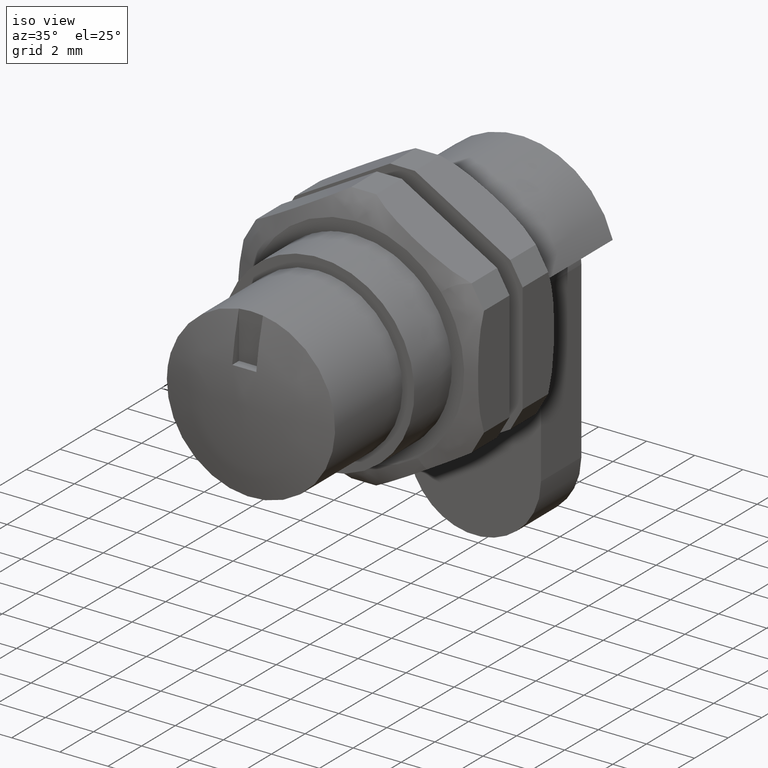
[diagram: clean part render]
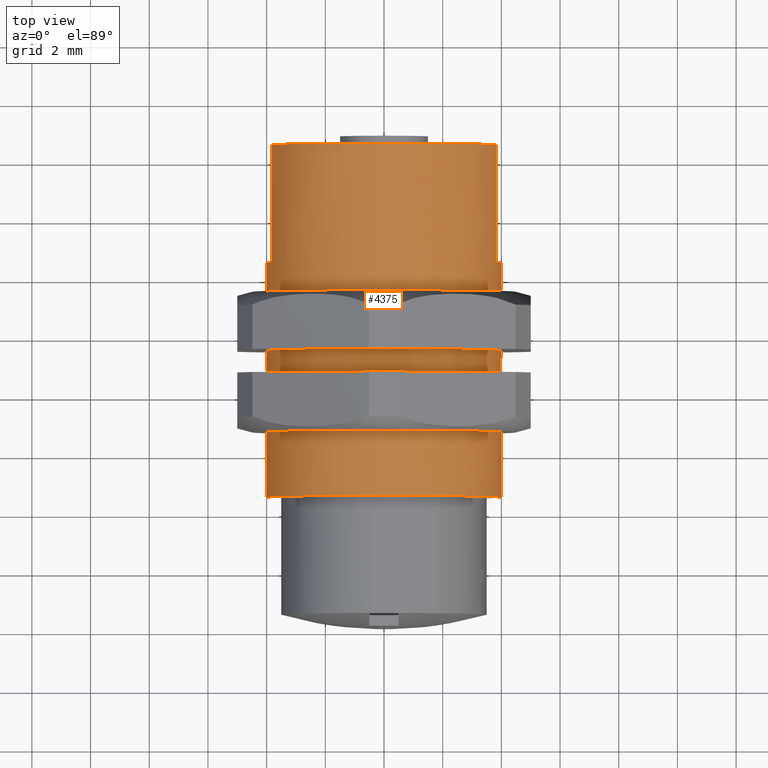
[diagram: tour spotlight — one face highlighted and labeled with its STEP entity id]
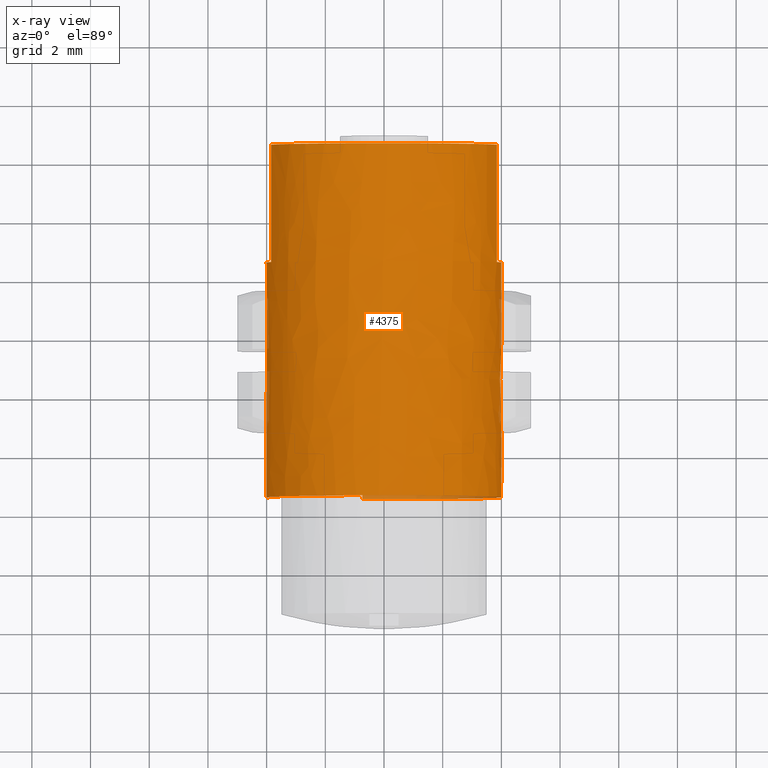
[diagram: x-ray of the same camera — body ghosted, this tour face saturated]
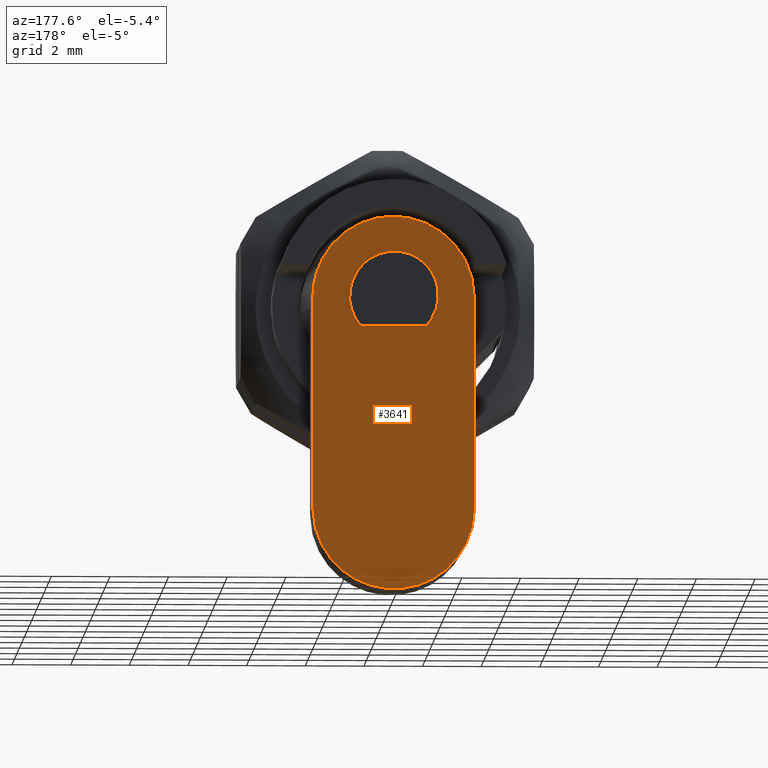
[diagram: tour spotlight — one face highlighted and labeled with its STEP entity id]
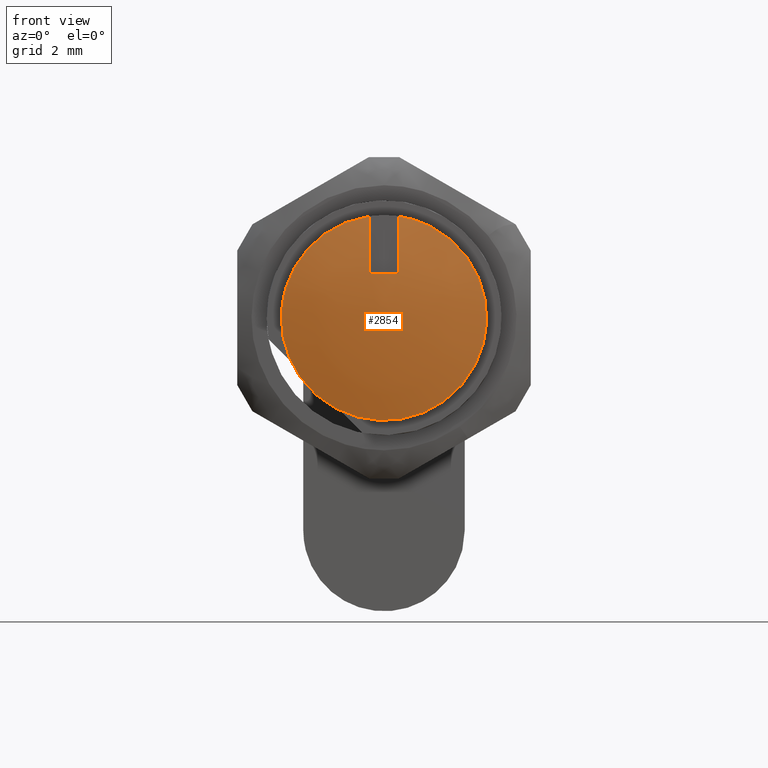
[diagram: tour spotlight — one face highlighted and labeled with its STEP entity id]
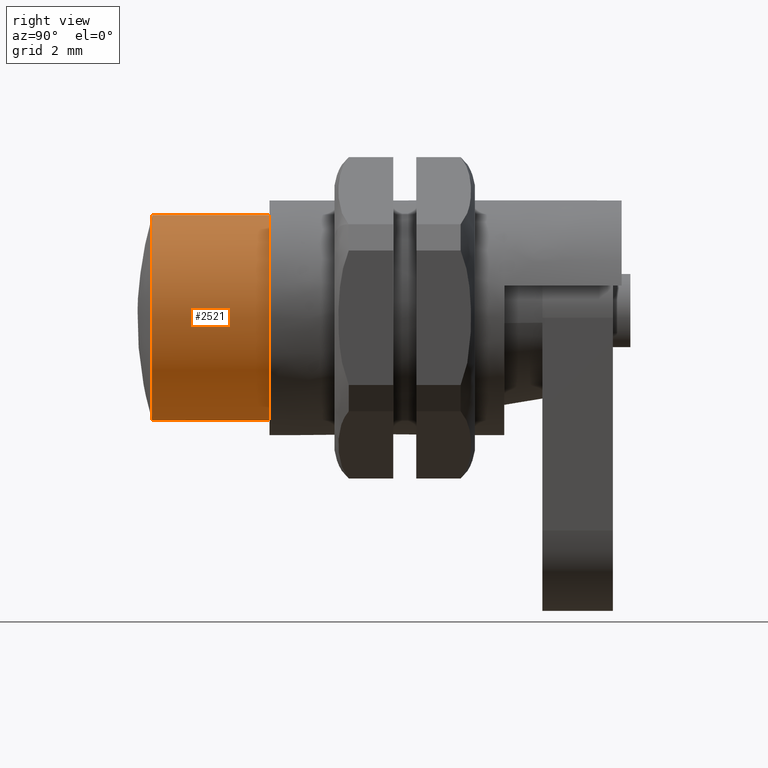
[diagram: tour spotlight — one face highlighted and labeled with its STEP entity id]
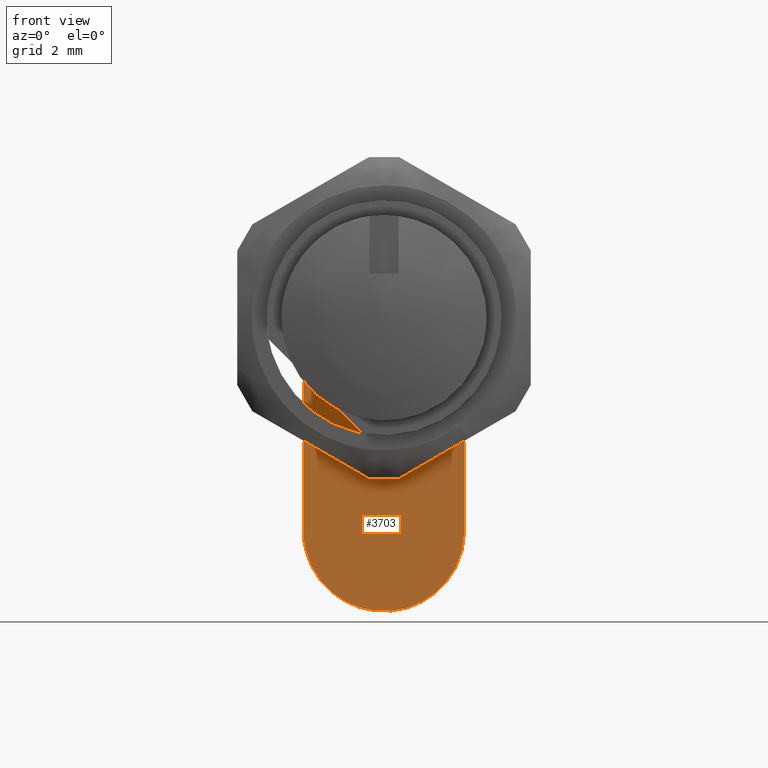
[diagram: tour spotlight — one face highlighted and labeled with its STEP entity id]
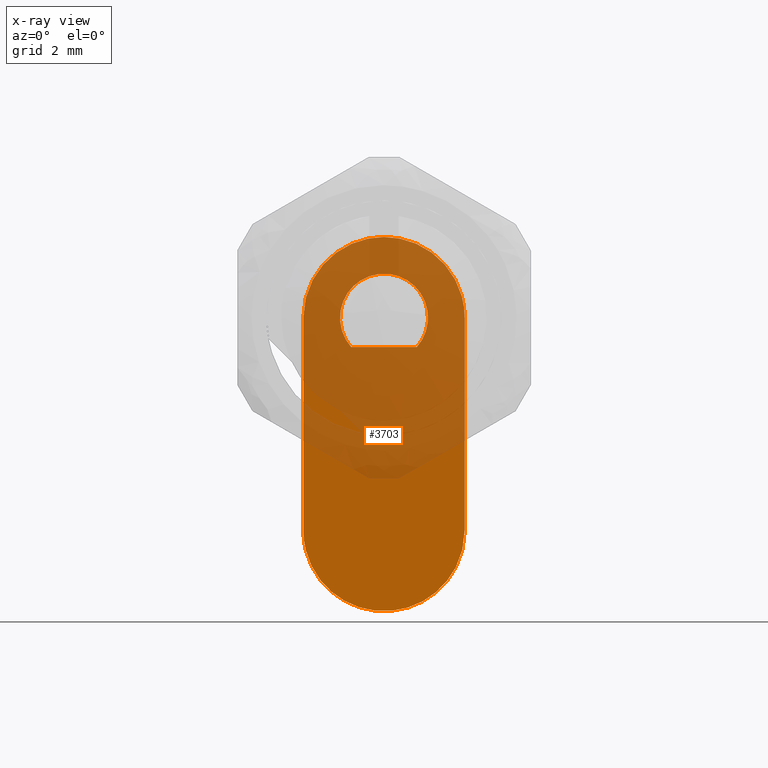
[diagram: x-ray of the same camera — body ghosted, this tour face saturated]
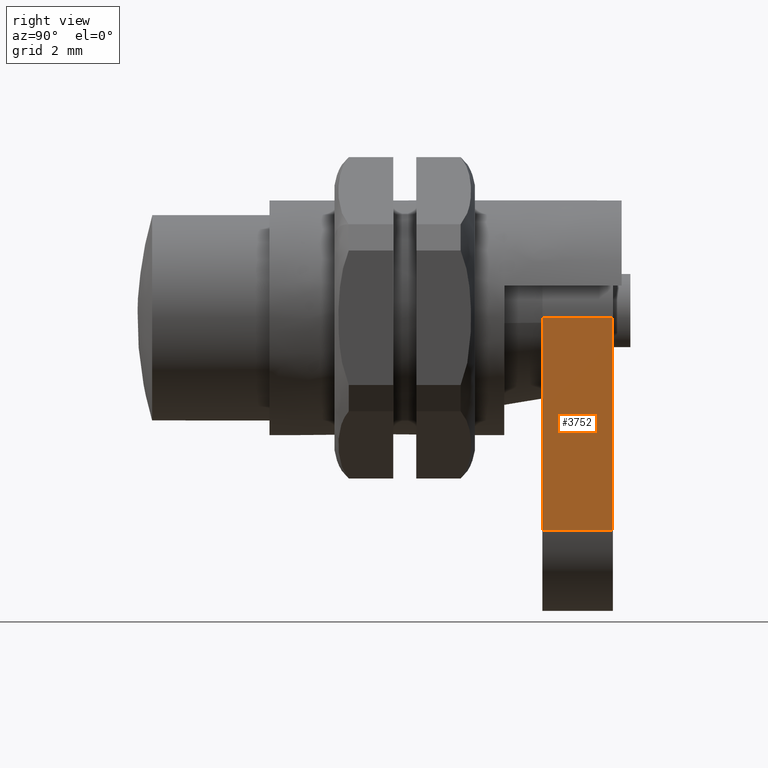
[diagram: tour spotlight — one face highlighted and labeled with its STEP entity id]
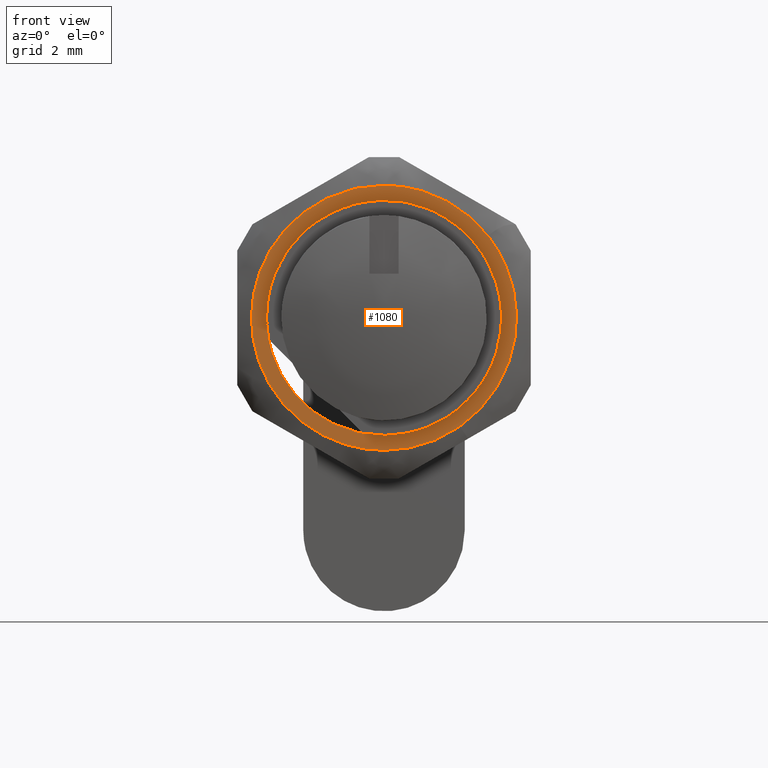
[diagram: tour spotlight — one face highlighted and labeled with its STEP entity id]
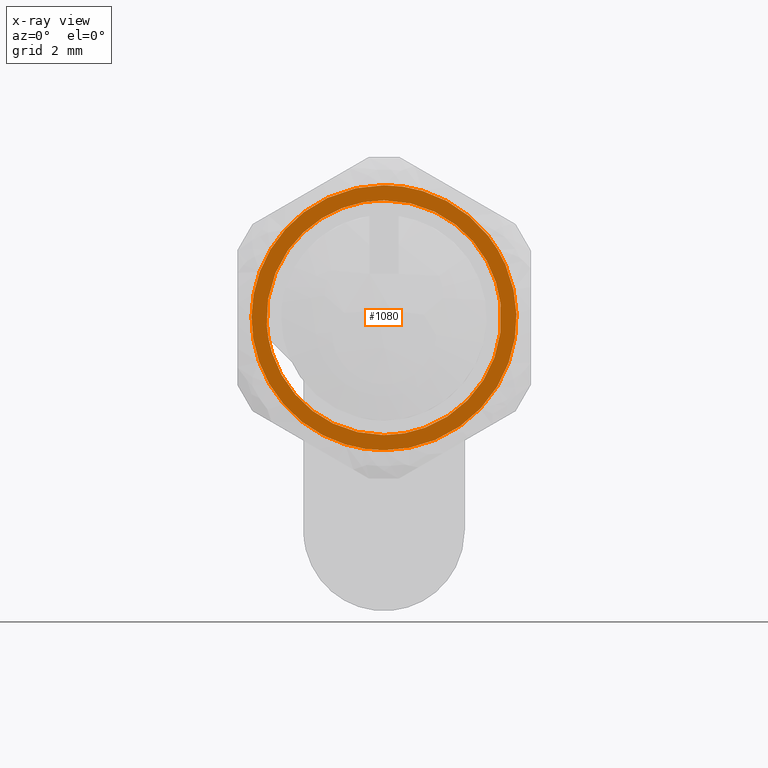
[diagram: x-ray of the same camera — body ghosted, this tour face saturated]
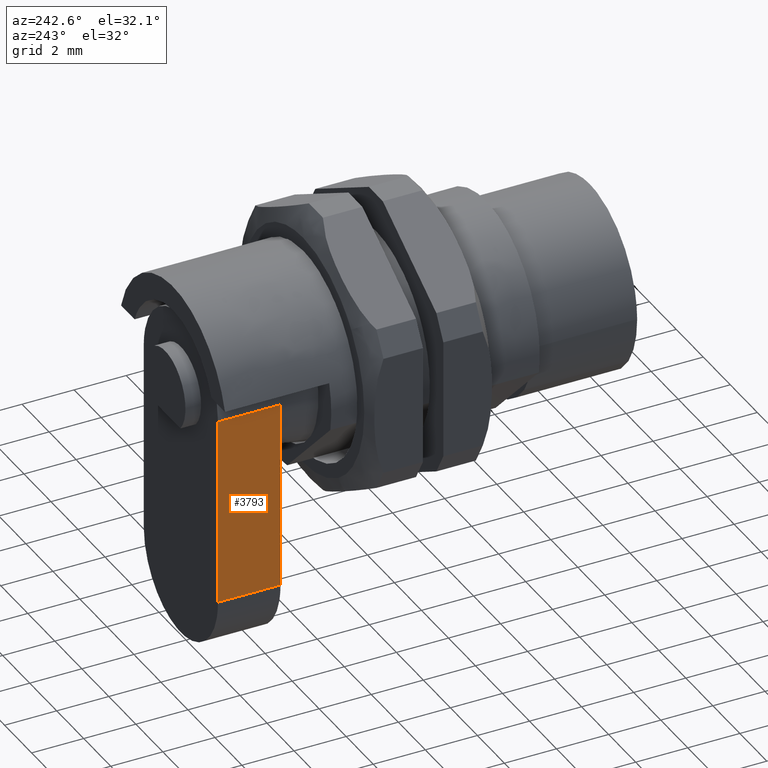
[diagram: tour spotlight — one face highlighted and labeled with its STEP entity id]
A machine part: a face-by-face anatomy tour. The part has 78 B-rep faces; the first image is the clean iso view, then the 8 largest visible faces are spotlighted one at a time (largest first), each with its STEP entity span.

Face 1 — top view, entity #4375. An x-ray twin of the same camera follows (body ghosted, this face saturated) — the face is partly hidden behind the body. In plain terms, the highlighted face is a freeform B-spline surface patch.
Definition (entity closure, byte-faithful):
#4238=CARTESIAN_POINT('',(12.500000000000000,3.931889114230184,175.943606358398990));
#4239=VERTEX_POINT('',#4238);
#4240=CARTESIAN_POINT('',(12.500000000000000,0.735015641601023,172.746732885770000));
#4241=VERTEX_POINT('',#4240);
#4247=CARTESIAN_POINT('',(4.499999999999949,0.735015641601022,172.746732885770000));
#4248=VERTEX_POINT('',#4247);
#4249=CARTESIAN_POINT('',(12.500000000000000,0.735015641601023,172.746732885770000));
#4250=CARTESIAN_POINT('',(4.499999999999949,0.735015641601022,172.746732885770000));
#4251=QUASI_UNIFORM_CURVE('',1,(#4249,#4250),.UNSPECIFIED.,.F.,.U.);
#4252=EDGE_CURVE('',#4241,#4248,#4251,.T.);
#4254=CARTESIAN_POINT('',(4.499999999999949,3.931889114230184,175.943606358398990));
#4255=VERTEX_POINT('',#4254);
#4261=CARTESIAN_POINT('',(12.500000000000000,3.931889114230184,175.943606358398990));
#4262=CARTESIAN_POINT('',(4.499999999999949,3.931889114230184,175.943606358398990));
#4263=QUASI_UNIFORM_CURVE('',1,(#4261,#4262),.UNSPECIFIED.,.F.,.U.);
#4264=EDGE_CURVE('',#4239,#4255,#4263,.T.);
#4269=CARTESIAN_POINT('',(16.800000000000001,3.905757148942611,175.815452785139090));
#4270=CARTESIAN_POINT('',(4.192499999999946,3.905757148942611,175.815452785139090));
#4271=CARTESIAN_POINT('',(16.800000000000001,4.910465675516790,180.361661619640730));
#4272=CARTESIAN_POINT('',(4.192499999999946,4.910465675516790,180.361661619640730));
#4273=CARTESIAN_POINT('',(16.800000000000001,0.264771508782303,180.669849386173010));
#4274=CARTESIAN_POINT('',(4.192499999999946,0.264771508782303,180.669849386173010));
#4275=CARTESIAN_POINT('',(16.800000000000001,-4.380922657952168,180.978037152705270));
#4276=CARTESIAN_POINT('',(4.192499999999946,-4.380922657952168,180.978037152705270));
#4277=CARTESIAN_POINT('',(16.800000000000001,-3.985551715711040,176.338949331990790));
#4278=CARTESIAN_POINT('',(4.192499999999946,-3.985551715711040,176.338949331990790));
#4279=CARTESIAN_POINT('',(16.800000000000001,-3.590180773469914,171.699861511276200));
#4280=CARTESIAN_POINT('',(4.192499999999946,-3.590180773469914,171.699861511276200));
#4281=CARTESIAN_POINT('',(16.800000000000001,0.936359889195842,172.789762249648390));
#4282=CARTESIAN_POINT('',(4.192499999999946,0.936359889195842,172.789762249648390));
#4290=(BOUNDED_SURFACE()B_SPLINE_SURFACE(1,2,((#4269,#4271,#4273,#4275,#4277,#4279,#4281),(#4270,#4272,#4274,#4276,#4278,#4280,#4282)),.UNSPECIFIED.,.F.,.F.,.U.)B_SPLINE_SURFACE_WITH_KNOTS((2,2),(3,2,2,3),(0.0,12.607500000000060),(0.0,7.347903137409301,14.695806274818599,22.043709412227908),.UNSPECIFIED.)GEOMETRIC_REPRESENTATION_ITEM()RATIONAL_B_SPLINE_SURFACE(((1.0,0.651657228821455,1.0,0.651657228821455,1.0,0.651657228821455,1.0),(1.0,0.651657228821455,1.0,0.651657228821455,1.0,0.651657228821455,1.0)))REPRESENTATION_ITEM('')SURFACE());
#4291=CARTESIAN_POINT('',(12.500000000000000,3.845776904605885,177.778622000000010));
#4292=VERTEX_POINT('',#4291);
#4293=CARTESIAN_POINT('',(12.500000000000000,3.931889114230191,175.943606358398990));
#4294=CARTESIAN_POINT('',(12.499999999999998,4.105304274497135,176.871272577053730));
#4295=CARTESIAN_POINT('',(12.500000000000000,3.845776904605885,177.778622000000010));
#4303=(BOUNDED_CURVE()B_SPLINE_CURVE(2,(#4293,#4294,#4295),.UNSPECIFIED.,.F.,.U.)CURVE()GEOMETRIC_REPRESENTATION_ITEM()QUASI_UNIFORM_CURVE()RATIONAL_B_SPLINE_CURVE((1.0,0.973278145322816,1.0))REPRESENTATION_ITEM(''));
#4304=EDGE_CURVE('',#4239,#4292,#4303,.T.);
#4305=ORIENTED_EDGE('',*,*,#4304,.F.);
#4306=ORIENTED_EDGE('',*,*,#4264,.T.);
#4307=CARTESIAN_POINT('',(4.499999999999949,0.735015641601054,172.746732885769800));
#4308=CARTESIAN_POINT('',(4.499999999999949,-2.163518267899826,172.204889588744180));
#4309=CARTESIAN_POINT('',(4.499999999999949,-3.538511243755323,174.813430809312790));
#4310=CARTESIAN_POINT('',(4.499999999999949,-4.913504219610821,177.421972029881540));
#4311=CARTESIAN_POINT('',(4.499999999999949,-2.828427124746209,179.507049124746200));
#4312=CARTESIAN_POINT('',(4.499999999999949,-0.743350029881596,181.592126219610800));
#4313=CARTESIAN_POINT('',(4.499999999999949,1.865191190687163,180.217133243755310));
#4314=CARTESIAN_POINT('',(4.499999999999949,4.473732411255917,178.842140267899820));
#4315=CARTESIAN_POINT('',(4.499999999999949,3.931889114230190,175.943606358398990));
#4323=(BOUNDED_CURVE()B_SPLINE_CURVE(2,(#4307,#4308,#4309,#4310,#4311,#4312,#4313,#4314,#4315),.UNSPECIFIED.,.F.,.U.)B_SPLINE_CURVE_WITH_KNOTS((3,2,2,2,3),(0.0,0.250000000000000,0.500000000000000,0.750000000000000,1.0),.UNSPECIFIED.)CURVE()GEOMETRIC_REPRESENTATION_ITEM()RATIONAL_B_SPLINE_CURVE((1.0,0.804923595490585,1.0,0.804923595490585,1.0,0.804923595490585,1.0,0.804923595490585,1.0))REPRESENTATION_ITEM(''));
#4324=EDGE_CURVE('',#4248,#4255,#4323,.T.);
#4325=ORIENTED_EDGE('',*,*,#4324,.F.);
#4326=ORIENTED_EDGE('',*,*,#4252,.F.);
#4327=CARTESIAN_POINT('',(12.500000000000000,-3.845776904605885,177.778622000000010));
#4328=VERTEX_POINT('',#4327);
#4329=CARTESIAN_POINT('',(12.500000000000000,-3.845776904605885,177.778622000000010));
#4330=CARTESIAN_POINT('',(12.499999999999996,-4.458975559436669,175.634780886651330));
#4331=CARTESIAN_POINT('',(12.500000000000000,-2.957902284276794,173.985888430433590));
#4332=CARTESIAN_POINT('',(12.499999999999996,-1.456829009116919,172.336995974215910));
#4333=CARTESIAN_POINT('',(12.500000000000000,0.735015641601055,172.746732885769800));
#4341=(BOUNDED_CURVE()B_SPLINE_CURVE(2,(#4329,#4330,#4331,#4332,#4333),.UNSPECIFIED.,.F.,.U.)B_SPLINE_CURVE_WITH_KNOTS((3,2,3),(0.0,0.500000000000000,1.0),.UNSPECIFIED.)CURVE()GEOMETRIC_REPRESENTATION_ITEM()RATIONAL_B_SPLINE_CURVE((1.0,0.873452656208924,1.0,0.873452656208924,1.0))REPRESENTATION_ITEM(''));
#4342=EDGE_CURVE('',#4328,#4241,#4341,.T.);
#4343=ORIENTED_EDGE('',*,*,#4342,.F.);
#4344=CARTESIAN_POINT('',(16.500000000000000,-3.845776904605880,177.778622000000010));
#4345=VERTEX_POINT('',#4344);
#4346=CARTESIAN_POINT('',(16.500000000000000,-3.845776904605880,177.778622000000010));
#4347=CARTESIAN_POINT('',(12.500000000000000,-3.845776904605885,177.778622000000010));
#4348=QUASI_UNIFORM_CURVE('',1,(#4346,#4347),.UNSPECIFIED.,.F.,.U.);
#4349=EDGE_CURVE('',#4345,#4328,#4348,.T.);
#4350=ORIENTED_EDGE('',*,*,#4349,.F.);
#4351=CARTESIAN_POINT('',(16.500000000000000,3.845776904605860,177.778622000000010));
#4352=VERTEX_POINT('',#4351);
#4353=CARTESIAN_POINT('',(16.500000000000000,-3.845776904605885,177.778622000000010));
#4354=CARTESIAN_POINT('',(16.500000000000004,-3.016295611455601,180.678622000000050));
#4355=CARTESIAN_POINT('',(16.500000000000000,0.0,180.678621999999990));
#4356=CARTESIAN_POINT('',(16.500000000000004,3.016295611455596,180.678622000000050));
#4357=CARTESIAN_POINT('',(16.500000000000000,3.845776904605883,177.778622000000010));
#4365=(BOUNDED_CURVE()B_SPLINE_CURVE(2,(#4353,#4354,#4355,#4356,#4357),.UNSPECIFIED.,.F.,.U.)B_SPLINE_CURVE_WITH_KNOTS((3,2,3),(0.0,0.500000000000000,1.0),.UNSPECIFIED.)CURVE()GEOMETRIC_REPRESENTATION_ITEM()RATIONAL_B_SPLINE_CURVE((1.0,0.798435971133565,1.0,0.798435971133565,1.0))REPRESENTATION_ITEM(''));
#4366=EDGE_CURVE('',#4345,#4352,#4365,.T.);
#4367=ORIENTED_EDGE('',*,*,#4366,.T.);
#4368=CARTESIAN_POINT('',(12.500000000000000,3.845776904605885,177.778622000000010));
#4369=CARTESIAN_POINT('',(16.500000000000000,3.845776904605860,177.778622000000010));
#4370=QUASI_UNIFORM_CURVE('',1,(#4368,#4369),.UNSPECIFIED.,.F.,.U.);
#4371=EDGE_CURVE('',#4292,#4352,#4370,.T.);
#4372=ORIENTED_EDGE('',*,*,#4371,.F.);
#4373=EDGE_LOOP('',(#4305,#4306,#4325,#4326,#4343,#4350,#4367,#4372));
#4374=FACE_OUTER_BOUND('',#4373,.T.);
#4375=ADVANCED_FACE('',(#4374),#4290,.T.);

Face 2 — auxiliary view, entity #3641. In plain terms, the highlighted face is a freeform B-spline surface patch.
Definition (entity closure, byte-faithful):
#3488=CARTESIAN_POINT('',(16.199999999999999,1.118033988749894,-1.0));
#3489=VERTEX_POINT('',#3488);
#3490=CARTESIAN_POINT('',(16.199999999999999,-1.118033988749894,-1.0));
#3491=VERTEX_POINT('',#3490);
#3492=CARTESIAN_POINT('',(16.199999999999999,1.118033988749894,-1.0));
#3493=CARTESIAN_POINT('',(16.199999999999999,-1.118033988749894,-1.0));
#3494=QUASI_UNIFORM_CURVE('',1,(#3492,#3493),.UNSPECIFIED.,.F.,.U.);
#3495=EDGE_CURVE('',#3489,#3491,#3494,.T.);
#3541=CARTESIAN_POINT('',(16.199999999999999,1.118033988749895,-1.0));
#3542=CARTESIAN_POINT('',(16.200000000000006,2.081592375276994,0.077291026282305));
#3543=CARTESIAN_POINT('',(16.199999999999999,1.040796187638497,1.080158921546812));
#3544=CARTESIAN_POINT('',(16.200000000000006,-2.168404E-016,2.083026816811318));
#3545=CARTESIAN_POINT('',(16.199999999999999,-1.040796187638497,1.080158921546811));
#3546=CARTESIAN_POINT('',(16.200000000000006,-2.081592375276994,0.077291026282305));
#3547=CARTESIAN_POINT('',(16.199999999999999,-1.118033988749895,-1.0));
#3555=(BOUNDED_CURVE()B_SPLINE_CURVE(2,(#3541,#3542,#3543,#3544,#3545,#3546,#3547),.UNSPECIFIED.,.F.,.U.)B_SPLINE_CURVE_WITH_KNOTS((3,2,2,3),(0.0,0.333333333333333,0.666666666666667,1.0),.UNSPECIFIED.)CURVE()GEOMETRIC_REPRESENTATION_ITEM()RATIONAL_B_SPLINE_CURVE((1.0,0.720105947697874,1.0,0.720105947697874,1.0,0.720105947697874,1.0))REPRESENTATION_ITEM(''));
#3556=EDGE_CURVE('',#3489,#3491,#3555,.T.);
#3580=CARTESIAN_POINT('',(16.199999999999999,-3.024724989339933,3.386862475285363));
#3581=CARTESIAN_POINT('',(16.199999999999999,3.024725136861429,3.386862475285363));
#3582=CARTESIAN_POINT('',(16.199999999999999,-3.024724989339933,-10.636862817269540));
#3583=CARTESIAN_POINT('',(16.199999999999999,3.024725136861429,-10.636862817269540));
#3584=B_SPLINE_SURFACE_WITH_KNOTS('',1,1,((#3580,#3582),(#3581,#3583)),.UNSPECIFIED.,.F.,.F.,.U.,(2,2),(2,2),(0.0,6.049450126201361),(0.0,14.023725292554900),.UNSPECIFIED.);
#3585=CARTESIAN_POINT('',(16.199999999999999,2.750000000000000,0.0));
#3586=VERTEX_POINT('',#3585);
#3587=CARTESIAN_POINT('',(16.199999999999999,2.749999999999960,-7.249999520034460));
#3588=VERTEX_POINT('',#3587);
#3589=CARTESIAN_POINT('',(16.199999999999999,2.750000000000000,0.0));
#3590=CARTESIAN_POINT('',(16.199999999999999,2.749999999999960,-7.249999520034460));
#3591=QUASI_UNIFORM_CURVE('',1,(#3589,#3590),.UNSPECIFIED.,.F.,.U.);
#3592=EDGE_CURVE('',#3586,#3588,#3591,.T.);
#3593=ORIENTED_EDGE('',*,*,#3592,.F.);
#3594=CARTESIAN_POINT('',(16.199999999999999,-2.749999999999945,-1.683834E-016));
#3595=VERTEX_POINT('',#3594);
#3596=CARTESIAN_POINT('',(16.199999999999999,2.750000000000000,0.0));
#3597=CARTESIAN_POINT('',(16.199999999999999,2.750000000000000,2.750000000000000));
#3598=CARTESIAN_POINT('',(16.199999999999999,0.0,2.750000000000000));
#3599=CARTESIAN_POINT('',(16.199999999999999,-2.750000000000000,2.750000000000000));
#3600=CARTESIAN_POINT('',(16.199999999999999,-2.749999999999945,-1.683834E-016));
#3608=(BOUNDED_CURVE()B_SPLINE_CURVE(2,(#3596,#3597,#3598,#3599,#3600),.UNSPECIFIED.,.F.,.U.)B_SPLINE_CURVE_WITH_KNOTS((3,2,3),(0.0,0.500000000000000,1.0),.UNSPECIFIED.)CURVE()GEOMETRIC_REPRESENTATION_ITEM()RATIONAL_B_SPLINE_CURVE((1.0,0.707106781186548,1.0,0.707106781186548,1.0))REPRESENTATION_ITEM(''));
#3609=EDGE_CURVE('',#3586,#3595,#3608,.T.);
#3610=ORIENTED_EDGE('',*,*,#3609,.T.);
#3611=CARTESIAN_POINT('',(16.199999999999999,-2.750000000000000,-7.250000000000000));
#3612=VERTEX_POINT('',#3611);
#3613=CARTESIAN_POINT('',(16.199999999999999,-2.750000000000000,-7.250000000000000));
#3614=CARTESIAN_POINT('',(16.199999999999999,-2.749999999999945,-1.683834E-016));
#3615=QUASI_UNIFORM_CURVE('',1,(#3613,#3614),.UNSPECIFIED.,.F.,.U.);
#3616=EDGE_CURVE('',#3612,#3595,#3615,.T.);
#3617=ORIENTED_EDGE('',*,*,#3616,.F.);
#3618=CARTESIAN_POINT('',(16.199999999999999,-2.750000000000000,-7.250000000000000));
#3619=CARTESIAN_POINT('',(16.199999999999996,-2.750000000000001,-8.837713346930482));
#3620=CARTESIAN_POINT('',(16.199999999999999,-1.374999861445881,-9.631569940401457));
#3621=CARTESIAN_POINT('',(16.199999999999996,0.000000277108238,-10.425426533872434));
#3622=CARTESIAN_POINT('',(16.199999999999999,1.375000277108224,-9.631569700418677));
#3623=CARTESIAN_POINT('',(16.199999999999996,2.750000277108209,-8.837712866964917));
#3624=CARTESIAN_POINT('',(16.199999999999999,2.749999999999958,-7.249999520034462));
#3632=(BOUNDED_CURVE()B_SPLINE_CURVE(2,(#3618,#3619,#3620,#3621,#3622,#3623,#3624),.UNSPECIFIED.,.F.,.U.)B_SPLINE_CURVE_WITH_KNOTS((3,2,2,3),(0.0,0.333333333333333,0.666666666666667,1.0),.UNSPECIFIED.)CURVE()GEOMETRIC_REPRESENTATION_ITEM()RATIONAL_B_SPLINE_CURVE((1.0,0.866025389240028,1.0,0.866025389240028,1.0,0.866025389240028,1.0))REPRESENTATION_ITEM(''));
#3633=EDGE_CURVE('',#3612,#3588,#3632,.T.);
#3634=ORIENTED_EDGE('',*,*,#3633,.T.);
#3635=EDGE_LOOP('',(#3593,#3610,#3617,#3634));
#3636=FACE_OUTER_BOUND('',#3635,.T.);
#3637=ORIENTED_EDGE('',*,*,#3556,.F.);
#3638=ORIENTED_EDGE('',*,*,#3495,.T.);
#3639=EDGE_LOOP('',(#3637,#3638));
#3640=FACE_BOUND('',#3639,.T.);
#3641=ADVANCED_FACE('',(#3636,#3640),#3584,.F.);

Face 3 — front view, entity #2854. In plain terms, the highlighted face is a freeform B-spline surface patch.
Definition (entity closure, byte-faithful):
#2458=CARTESIAN_POINT('',(0.500000000000000,3.499956155232701,0.017518888342919));
#2459=VERTEX_POINT('',#2458);
#2465=CARTESIAN_POINT('',(0.500000000000056,0.500000000000021,3.464101615137750));
#2466=VERTEX_POINT('',#2465);
#2467=CARTESIAN_POINT('',(0.500000000000056,0.500000000000021,3.464101615137750));
#2468=CARTESIAN_POINT('',(0.500000000000004,3.484860915111956,3.033274051929373));
#2469=CARTESIAN_POINT('',(0.500000000000000,3.499956155232701,0.017518888342919));
#2477=(BOUNDED_CURVE()B_SPLINE_CURVE(2,(#2467,#2468,#2469),.UNSPECIFIED.,.F.,.U.)B_SPLINE_CURVE_WITH_KNOTS((3,3),(0.0,0.236134146367909),.UNSPECIFIED.)CURVE()GEOMETRIC_REPRESENTATION_ITEM()RATIONAL_B_SPLINE_CURVE((1.0,0.746852721826884,0.971919175147914))REPRESENTATION_ITEM(''));
#2478=EDGE_CURVE('',#2466,#2459,#2477,.T.);
#2480=CARTESIAN_POINT('',(0.500000000000000,-0.499999999999994,3.464101615137770));
#2481=VERTEX_POINT('',#2480);
#2495=CARTESIAN_POINT('',(0.500000000000000,2.858535820382179,-2.019597228061085));
#2496=VERTEX_POINT('',#2495);
#2497=CARTESIAN_POINT('',(0.500000000000000,2.858535820382179,-2.019597228061085));
#2498=CARTESIAN_POINT('',(0.500000000000000,1.812609681077664,-3.500000000000000));
#2499=CARTESIAN_POINT('',(0.500000000000000,7.105427E-015,-3.500000000000000));
#2500=CARTESIAN_POINT('',(0.500000000000000,-3.257720568954359,-3.500000000000000));
#2501=CARTESIAN_POINT('',(0.500000000000000,-3.491013867988929,-0.250643518785001));
#2502=CARTESIAN_POINT('',(0.500000000000000,-3.724307167023499,2.998712962429991));
#2503=CARTESIAN_POINT('',(0.500000000000000,-0.499999999999994,3.464101615137770));
#2511=(BOUNDED_CURVE()B_SPLINE_CURVE(2,(#2497,#2498,#2499,#2500,#2501,#2502,#2503),.UNSPECIFIED.,.F.,.U.)B_SPLINE_CURVE_WITH_KNOTS((3,2,2,3),(0.342129904881546,0.500000000000000,0.750000000000000,1.0),.UNSPECIFIED.)CURVE()GEOMETRIC_REPRESENTATION_ITEM()RATIONAL_B_SPLINE_CURVE((0.875260226962982,0.830755587453663,1.0,0.731987853020313,1.0,0.731987853020313,1.0))REPRESENTATION_ITEM(''));
#2512=EDGE_CURVE('',#2496,#2481,#2511,.T.);
#2552=CARTESIAN_POINT('',(0.500000000000000,3.499956155232701,0.017518888342919));
#2553=CARTESIAN_POINT('',(0.500000000000000,3.500628151722757,-0.116733821026902));
#2554=CARTESIAN_POINT('',(0.500000000000000,3.491013867988942,-0.250643518785017));
#2555=CARTESIAN_POINT('',(0.500000000000000,3.421185800798585,-1.223223029789596));
#2556=CARTESIAN_POINT('',(0.500000000000000,2.858535820382178,-2.019597228061086));
#2564=(BOUNDED_CURVE()B_SPLINE_CURVE(2,(#2552,#2553,#2554,#2555,#2556),.UNSPECIFIED.,.F.,.U.)B_SPLINE_CURVE_WITH_KNOTS((3,2,3),(0.236134146367909,0.250000000000000,0.342129904881546),.UNSPECIFIED.)CURVE()GEOMETRIC_REPRESENTATION_ITEM()RATIONAL_B_SPLINE_CURVE((0.971919175147914,0.985135131193429,1.0,0.901232265566650,0.875260226962983))REPRESENTATION_ITEM(''));
#2565=EDGE_CURVE('',#2459,#2496,#2564,.T.);
#2604=CARTESIAN_POINT('',(0.100403232362756,0.500000000000021,1.500000000000000));
#2605=VERTEX_POINT('',#2604);
#2606=CARTESIAN_POINT('',(0.500000000000056,0.500000000000021,3.464101615137750));
#2607=CARTESIAN_POINT('',(0.221149179550469,0.500000000000021,2.498134037636061));
#2608=CARTESIAN_POINT('',(0.100403232362756,0.500000000000021,1.500000000000000));
#2616=(BOUNDED_CURVE()B_SPLINE_CURVE(2,(#2606,#2607,#2608),.UNSPECIFIED.,.F.,.U.)CURVE()GEOMETRIC_REPRESENTATION_ITEM()QUASI_UNIFORM_CURVE()RATIONAL_B_SPLINE_CURVE((1.0,0.996775753454211,1.0))REPRESENTATION_ITEM(''));
#2617=EDGE_CURVE('',#2466,#2605,#2616,.T.);
#2633=CARTESIAN_POINT('',(0.100403232362755,-0.499999999999993,1.500000000000000));
#2634=VERTEX_POINT('',#2633);
#2635=CARTESIAN_POINT('',(0.100403232362753,-0.499999999999994,1.499999999999999));
#2636=CARTESIAN_POINT('',(0.221149179550467,-0.499999999999994,2.498134037636053));
#2637=CARTESIAN_POINT('',(0.500000000000000,-0.499999999999994,3.464101615137766));
#2645=(BOUNDED_CURVE()B_SPLINE_CURVE(2,(#2635,#2636,#2637),.UNSPECIFIED.,.F.,.U.)CURVE()GEOMETRIC_REPRESENTATION_ITEM()QUASI_UNIFORM_CURVE()RATIONAL_B_SPLINE_CURVE((1.0,0.996775753454211,1.0))REPRESENTATION_ITEM(''));
#2646=EDGE_CURVE('',#2634,#2481,#2645,.T.);
#2662=CARTESIAN_POINT('',(0.100403232362756,0.500000000000021,1.500000000000000));
#2663=CARTESIAN_POINT('',(0.080241286399114,9.215718E-015,1.500000000000000));
#2664=CARTESIAN_POINT('',(0.100403232362755,-0.499999999999993,1.500000000000000));
#2672=(BOUNDED_CURVE()B_SPLINE_CURVE(2,(#2662,#2663,#2664),.UNSPECIFIED.,.F.,.U.)CURVE()GEOMETRIC_REPRESENTATION_ITEM()QUASI_UNIFORM_CURVE()RATIONAL_B_SPLINE_CURVE((1.0,0.999187982001697,1.0))REPRESENTATION_ITEM(''));
#2673=EDGE_CURVE('',#2605,#2634,#2672,.T.);
#2822=CARTESIAN_POINT('',(1.156350965610610,-3.696974605661766,3.728807497000702));
#2823=CARTESIAN_POINT('',(0.589465133269207,-1.892512410888775,3.793304520914464));
#2824=CARTESIAN_POINT('',(0.589465133269211,1.893470924596726,3.793304520914465));
#2825=CARTESIAN_POINT('',(1.156911965345803,3.698759857578110,3.728743669663218));
#2826=CARTESIAN_POINT('',(0.446666930584095,-3.837769442911120,1.430238433442622));
#2827=CARTESIAN_POINT('',(-0.159904382018272,-1.966370040044888,1.440371427700790));
#2828=CARTESIAN_POINT('',(-0.159904382018268,1.967365960931558,1.440371427700791));
#2829=CARTESIAN_POINT('',(0.447266658729392,3.839619237493224,1.430228414765963));
#2830=CARTESIAN_POINT('',(0.758507214239439,-3.837769442911120,-2.375721360943020));
#2831=CARTESIAN_POINT('',(0.159652798359837,-1.966370040044888,-2.459771832400039));
#2832=CARTESIAN_POINT('',(0.159652798359841,1.967365960931558,-2.459771832400038));
#2833=CARTESIAN_POINT('',(0.759099312547877,3.839619237493224,-2.375638258705394));
#2834=CARTESIAN_POINT('',(1.183106463226870,-3.788445579172594,-3.718279275550743));
#2835=CARTESIAN_POINT('',(0.602505537811735,-1.940480656010294,-3.834009066525481));
#2836=CARTESIAN_POINT('',(0.602505537811739,1.941463464523516,-3.834009066525480));
#2837=CARTESIAN_POINT('',(1.183680696730186,3.790272791662362,-3.718164814962754));
#2845=(BOUNDED_SURFACE()B_SPLINE_SURFACE(2,2,((#2822,#2826,#2830,#2834),(#2823,#2827,#2831,#2835),(#2824,#2828,#2832,#2836),(#2825,#2829,#2833,#2837)),.UNSPECIFIED.,.F.,.F.,.U.)B_SPLINE_SURFACE_WITH_KNOTS((3,1,3),(3,1,3),(0.0,3.895645694052962,7.793264442431735),(0.0,4.892181137812979,7.752605153433533),.UNSPECIFIED.)GEOMETRIC_REPRESENTATION_ITEM()RATIONAL_B_SPLINE_SURFACE(((1.063772543654198,1.024746311260072,1.024746311260072,1.038088049016851),(1.039026232394126,1.0,1.0,1.013341737756780),(1.039026232394126,1.0,1.0,1.013341737756780),(1.063797616869212,1.024771384475085,1.024771384475085,1.038113122231865)))REPRESENTATION_ITEM('')SURFACE());
#2846=ORIENTED_EDGE('',*,*,#2646,.F.);
#2847=ORIENTED_EDGE('',*,*,#2673,.F.);
#2848=ORIENTED_EDGE('',*,*,#2617,.F.);
#2849=ORIENTED_EDGE('',*,*,#2478,.T.);
#2850=ORIENTED_EDGE('',*,*,#2565,.T.);
#2851=ORIENTED_EDGE('',*,*,#2512,.T.);
#2852=EDGE_LOOP('',(#2846,#2847,#2848,#2849,#2850,#2851));
#2853=FACE_OUTER_BOUND('',#2852,.T.);
#2854=ADVANCED_FACE('',(#2853),#2845,.T.);

Face 4 — right view, entity #2521. In plain terms, the highlighted face is a freeform B-spline surface patch.
Definition (entity closure, byte-faithful):
#2383=CARTESIAN_POINT('',(4.600000000000001,2.858535820399436,-2.019597228036659));
#2384=CARTESIAN_POINT('',(4.600000000000001,1.819011510592815,-3.490938857202475));
#2385=CARTESIAN_POINT('',(4.600000000000001,0.017518888145677,-3.499956155233682));
#2386=CARTESIAN_POINT('',(4.600000000000002,-3.482437267088004,-3.517475043379351));
#2387=CARTESIAN_POINT('',(4.600000000000001,-3.499956155233674,-0.017518888145670));
#2388=CARTESIAN_POINT('',(4.600000000000002,-3.517475043379345,3.482437267088013));
#2389=CARTESIAN_POINT('',(4.600000000000001,-0.017518888145663,3.499956155233682));
#2390=CARTESIAN_POINT('',(4.600000000000002,3.482437267088018,3.517475043379351));
#2391=CARTESIAN_POINT('',(4.600000000000001,3.499956155233689,0.017518888145670));
#2392=CARTESIAN_POINT('',(0.397500000000000,2.858535820399436,-2.019597228036659));
#2393=CARTESIAN_POINT('',(0.397500000000000,1.819011510592815,-3.490938857202475));
#2394=CARTESIAN_POINT('',(0.397500000000000,0.017518888145677,-3.499956155233682));
#2395=CARTESIAN_POINT('',(0.397500000000000,-3.482437267088004,-3.517475043379351));
#2396=CARTESIAN_POINT('',(0.397500000000000,-3.499956155233674,-0.017518888145670));
#2397=CARTESIAN_POINT('',(0.397500000000000,-3.517475043379345,3.482437267088013));
#2398=CARTESIAN_POINT('',(0.397500000000000,-0.017518888145663,3.499956155233682));
#2399=CARTESIAN_POINT('',(0.397500000000000,3.482437267088018,3.517475043379351));
#2400=CARTESIAN_POINT('',(0.397500000000000,3.499956155233689,0.017518888145670));
#2408=(BOUNDED_SURFACE()B_SPLINE_SURFACE(2,1,((#2383,#2392),(#2384,#2393),(#2385,#2394),(#2386,#2395),(#2387,#2396),(#2388,#2397),(#2389,#2398),(#2390,#2399),(#2391,#2400)),.UNSPECIFIED.,.F.,.F.,.U.)B_SPLINE_SURFACE_WITH_KNOTS((3,2,2,2,3),(2,2),(0.0,3.479393923933999,9.278383797157328,15.077373670380659,20.876363543603990),(0.0,4.202500000000002),.UNSPECIFIED.)GEOMETRIC_REPRESENTATION_ITEM()RATIONAL_B_SPLINE_SURFACE(((0.859411254969543,0.859411254969543),(0.824264068711928,0.824264068711928),(1.0,1.0),(0.707106781186548,0.707106781186548),(1.0,1.0),(0.707106781186548,0.707106781186548),(1.0,1.0),(0.707106781186548,0.707106781186548),(1.0,1.0)))REPRESENTATION_ITEM('')SURFACE());
#2409=CARTESIAN_POINT('',(4.500000000000000,2.858535820394594,-2.019597228043513));
#2410=VERTEX_POINT('',#2409);
#2411=CARTESIAN_POINT('',(4.500000000000000,7.105427E-015,-3.500000000000000));
#2412=VERTEX_POINT('',#2411);
#2413=CARTESIAN_POINT('',(4.500000000000000,2.858535820394594,-2.019597228043513));
#2414=CARTESIAN_POINT('',(4.500000000000000,1.812609681104951,-3.499999999999999));
#2415=CARTESIAN_POINT('',(4.500000000000000,7.105427E-015,-3.500000000000000));
#2423=(BOUNDED_CURVE()B_SPLINE_CURVE(2,(#2413,#2414,#2415),.UNSPECIFIED.,.F.,.U.)B_SPLINE_CURVE_WITH_KNOTS((3,3),(0.349239398258698,0.500000000000000),.UNSPECIFIED.)CURVE()GEOMETRIC_REPRESENTATION_ITEM()RATIONAL_B_SPLINE_CURVE((0.859773117297073,0.823372968342949,1.0))REPRESENTATION_ITEM(''));
#2424=EDGE_CURVE('',#2410,#2412,#2423,.T.);
#2425=ORIENTED_EDGE('',*,*,#2424,.T.);
#2426=CARTESIAN_POINT('',(4.500000000000000,7.105427E-015,3.500000000000000));
#2427=VERTEX_POINT('',#2426);
#2428=CARTESIAN_POINT('',(4.500000000000000,7.105427E-015,-3.500000000000000));
#2429=CARTESIAN_POINT('',(4.500000000000000,-3.499999999999994,-3.500000000000000));
#2430=CARTESIAN_POINT('',(4.500000000000000,-3.499999999999993,0.0));
#2431=CARTESIAN_POINT('',(4.500000000000000,-3.499999999999994,3.500000000000000));
#2432=CARTESIAN_POINT('',(4.500000000000000,7.105427E-015,3.500000000000000));
#2440=(BOUNDED_CURVE()B_SPLINE_CURVE(2,(#2428,#2429,#2430,#2431,#2432),.UNSPECIFIED.,.F.,.U.)B_SPLINE_CURVE_WITH_KNOTS((3,2,3),(0.500000000000000,0.750000000000000,1.0),.UNSPECIFIED.)CURVE()GEOMETRIC_REPRESENTATION_ITEM()RATIONAL_B_SPLINE_CURVE((1.0,0.707106781186547,1.0,0.707106781186547,1.0))REPRESENTATION_ITEM(''));
#2441=EDGE_CURVE('',#2412,#2427,#2440,.T.);
#2442=ORIENTED_EDGE('',*,*,#2441,.T.);
#2443=CARTESIAN_POINT('',(4.500000000000000,3.499956155231224,0.017518888638231));
#2444=VERTEX_POINT('',#2443);
#2445=CARTESIAN_POINT('',(4.500000000000000,7.105427E-015,3.500000000000000));
#2446=CARTESIAN_POINT('',(4.500000000000002,3.482524736726487,3.500000000000001));
#2447=CARTESIAN_POINT('',(4.500000000000001,3.499956155231224,0.017518888638231));
#2455=(BOUNDED_CURVE()B_SPLINE_CURVE(2,(#2445,#2446,#2447),.UNSPECIFIED.,.F.,.U.)B_SPLINE_CURVE_WITH_KNOTS((3,3),(0.0,0.249116073265929),.UNSPECIFIED.)CURVE()GEOMETRIC_REPRESENTATION_ITEM()RATIONAL_B_SPLINE_CURVE((1.0,0.708142365771897,0.997936153876504))REPRESENTATION_ITEM(''));
#2456=EDGE_CURVE('',#2427,#2444,#2455,.T.);
#2457=ORIENTED_EDGE('',*,*,#2456,.T.);
#2458=CARTESIAN_POINT('',(0.500000000000000,3.499956155232701,0.017518888342919));
#2459=VERTEX_POINT('',#2458);
#2460=CARTESIAN_POINT('',(4.500000000000000,3.499956155231224,0.017518888638231));
#2461=CARTESIAN_POINT('',(0.500000000000000,3.499956155232701,0.017518888342919));
#2462=QUASI_UNIFORM_CURVE('',1,(#2460,#2461),.UNSPECIFIED.,.F.,.U.);
#2463=EDGE_CURVE('',#2444,#2459,#2462,.T.);
#2464=ORIENTED_EDGE('',*,*,#2463,.T.);
#2465=CARTESIAN_POINT('',(0.500000000000056,0.500000000000021,3.464101615137750));
#2466=VERTEX_POINT('',#2465);
#2467=CARTESIAN_POINT('',(0.500000000000056,0.500000000000021,3.464101615137750));
#2468=CARTESIAN_POINT('',(0.500000000000004,3.484860915111956,3.033274051929373));
#2469=CARTESIAN_POINT('',(0.500000000000000,3.499956155232701,0.017518888342919));
#2477=(BOUNDED_CURVE()B_SPLINE_CURVE(2,(#2467,#2468,#2469),.UNSPECIFIED.,.F.,.U.)B_SPLINE_CURVE_WITH_KNOTS((3,3),(0.0,0.236134146367909),.UNSPECIFIED.)CURVE()GEOMETRIC_REPRESENTATION_ITEM()RATIONAL_B_SPLINE_CURVE((1.0,0.746852721826884,0.971919175147914))REPRESENTATION_ITEM(''));
#2478=EDGE_CURVE('',#2466,#2459,#2477,.T.);
#2479=ORIENTED_EDGE('',*,*,#2478,.F.);
#2480=CARTESIAN_POINT('',(0.500000000000000,-0.499999999999994,3.464101615137770));
#2481=VERTEX_POINT('',#2480);
#2482=CARTESIAN_POINT('',(0.500000000000000,-0.499999999999994,3.464101615137770));
#2483=CARTESIAN_POINT('',(0.500000000000056,1.436958E-014,3.536270398786459));
#2484=CARTESIAN_POINT('',(0.500000000000056,0.500000000000021,3.464101615137753));
#2492=(BOUNDED_CURVE()B_SPLINE_CURVE(2,(#2482,#2483,#2484),.UNSPECIFIED.,.F.,.U.)CURVE()GEOMETRIC_REPRESENTATION_ITEM()QUASI_UNIFORM_CURVE()RATIONAL_B_SPLINE_CURVE((1.0,0.989743318610787,1.0))REPRESENTATION_ITEM(''));
#2493=EDGE_CURVE('',#2481,#2466,#2492,.T.);
#2494=ORIENTED_EDGE('',*,*,#2493,.F.);
#2495=CARTESIAN_POINT('',(0.500000000000000,2.858535820382179,-2.019597228061085));
#2496=VERTEX_POINT('',#2495);
#2497=CARTESIAN_POINT('',(0.500000000000000,2.858535820382179,-2.019597228061085));
#2498=CARTESIAN_POINT('',(0.500000000000000,1.812609681077664,-3.500000000000000));
#2499=CARTESIAN_POINT('',(0.500000000000000,7.105427E-015,-3.500000000000000));
#2500=CARTESIAN_POINT('',(0.500000000000000,-3.257720568954359,-3.500000000000000));
#2501=CARTESIAN_POINT('',(0.500000000000000,-3.491013867988929,-0.250643518785001));
#2502=CARTESIAN_POINT('',(0.500000000000000,-3.724307167023499,2.998712962429991));
#2503=CARTESIAN_POINT('',(0.500000000000000,-0.499999999999994,3.464101615137770));
#2511=(BOUNDED_CURVE()B_SPLINE_CURVE(2,(#2497,#2498,#2499,#2500,#2501,#2502,#2503),.UNSPECIFIED.,.F.,.U.)B_SPLINE_CURVE_WITH_KNOTS((3,2,2,3),(0.342129904881546,0.500000000000000,0.750000000000000,1.0),.UNSPECIFIED.)CURVE()GEOMETRIC_REPRESENTATION_ITEM()RATIONAL_B_SPLINE_CURVE((0.875260226962982,0.830755587453663,1.0,0.731987853020313,1.0,0.731987853020313,1.0))REPRESENTATION_ITEM(''));
#2512=EDGE_CURVE('',#2496,#2481,#2511,.T.);
#2513=ORIENTED_EDGE('',*,*,#2512,.F.);
#2514=CARTESIAN_POINT('',(4.500000000000000,2.858535820394594,-2.019597228043513));
#2515=CARTESIAN_POINT('',(0.500000000000000,2.858535820382179,-2.019597228061085));
#2516=QUASI_UNIFORM_CURVE('',1,(#2514,#2515),.UNSPECIFIED.,.F.,.U.);
#2517=EDGE_CURVE('',#2410,#2496,#2516,.T.);
#2518=ORIENTED_EDGE('',*,*,#2517,.F.);
#2519=EDGE_LOOP('',(#2425,#2442,#2457,#2464,#2479,#2494,#2513,#2518));
#2520=FACE_OUTER_BOUND('',#2519,.T.);
#2521=ADVANCED_FACE('',(#2520),#2408,.T.);

Face 5 — front view, entity #3703. An x-ray twin of the same camera follows (body ghosted, this face saturated) — the face is partly hidden behind the body. In plain terms, the highlighted face is a freeform B-spline surface patch.
Definition (entity closure, byte-faithful):
#3497=CARTESIAN_POINT('',(13.800000000000001,1.118033988749894,-1.0));
#3498=VERTEX_POINT('',#3497);
#3504=CARTESIAN_POINT('',(13.800000000000001,-1.118033988749894,-1.0));
#3505=VERTEX_POINT('',#3504);
#3506=CARTESIAN_POINT('',(13.800000000000001,1.118033988749894,-1.0));
#3507=CARTESIAN_POINT('',(13.800000000000001,-1.118033988749894,-1.0));
#3508=QUASI_UNIFORM_CURVE('',1,(#3506,#3507),.UNSPECIFIED.,.F.,.U.);
#3509=EDGE_CURVE('',#3498,#3505,#3508,.T.);
#3559=CARTESIAN_POINT('',(13.800000000000001,1.118033988749895,-1.0));
#3560=CARTESIAN_POINT('',(13.799999999999997,2.081592375276994,0.077291026282305));
#3561=CARTESIAN_POINT('',(13.800000000000001,1.040796187638497,1.080158921546812));
#3562=CARTESIAN_POINT('',(13.799999999999997,-2.168404E-016,2.083026816811318));
#3563=CARTESIAN_POINT('',(13.800000000000001,-1.040796187638497,1.080158921546811));
#3564=CARTESIAN_POINT('',(13.799999999999997,-2.081592375276994,0.077291026282305));
#3565=CARTESIAN_POINT('',(13.800000000000001,-1.118033988749895,-1.0));
#3573=(BOUNDED_CURVE()B_SPLINE_CURVE(2,(#3559,#3560,#3561,#3562,#3563,#3564,#3565),.UNSPECIFIED.,.F.,.U.)B_SPLINE_CURVE_WITH_KNOTS((3,2,2,3),(0.0,0.333333333333333,0.666666666666667,1.0),.UNSPECIFIED.)CURVE()GEOMETRIC_REPRESENTATION_ITEM()RATIONAL_B_SPLINE_CURVE((1.0,0.720105947697874,1.0,0.720105947697874,1.0,0.720105947697874,1.0))REPRESENTATION_ITEM(''));
#3574=EDGE_CURVE('',#3498,#3505,#3573,.T.);
#3642=CARTESIAN_POINT('',(13.800000000000001,-3.024724989339933,3.386862475285363));
#3643=CARTESIAN_POINT('',(13.800000000000001,3.024725136861429,3.386862475285363));
#3644=CARTESIAN_POINT('',(13.800000000000001,-3.024724989339933,-10.636862817269540));
#3645=CARTESIAN_POINT('',(13.800000000000001,3.024725136861429,-10.636862817269540));
#3646=B_SPLINE_SURFACE_WITH_KNOTS('',1,1,((#3642,#3644),(#3643,#3645)),.UNSPECIFIED.,.F.,.F.,.U.,(2,2),(2,2),(0.0,6.049450126201361),(0.0,14.023725292554900),.UNSPECIFIED.);
#3647=CARTESIAN_POINT('',(13.800000000000001,2.750000000000000,0.0));
#3648=VERTEX_POINT('',#3647);
#3649=CARTESIAN_POINT('',(13.800000000000001,2.749999999999960,-7.249999520034460));
#3650=VERTEX_POINT('',#3649);
#3651=CARTESIAN_POINT('',(13.800000000000001,2.750000000000000,0.0));
#3652=CARTESIAN_POINT('',(13.800000000000001,2.749999999999960,-7.249999520034460));
#3653=QUASI_UNIFORM_CURVE('',1,(#3651,#3652),.UNSPECIFIED.,.F.,.U.);
#3654=EDGE_CURVE('',#3648,#3650,#3653,.T.);
#3655=ORIENTED_EDGE('',*,*,#3654,.T.);
#3656=CARTESIAN_POINT('',(13.800000000000001,-2.750000000000000,-7.250000000000000));
#3657=VERTEX_POINT('',#3656);
#3658=CARTESIAN_POINT('',(13.800000000000001,-2.750000000000000,-7.250000000000000));
#3659=CARTESIAN_POINT('',(13.800000000000004,-2.750000000000001,-8.837713346930482));
#3660=CARTESIAN_POINT('',(13.800000000000001,-1.374999861445881,-9.631569940401457));
#3661=CARTESIAN_POINT('',(13.800000000000004,0.000000277108238,-10.425426533872434));
#3662=CARTESIAN_POINT('',(13.800000000000001,1.375000277108224,-9.631569700418677));
#3663=CARTESIAN_POINT('',(13.800000000000004,2.750000277108209,-8.837712866964917));
#3664=CARTESIAN_POINT('',(13.800000000000001,2.749999999999958,-7.249999520034462));
#3672=(BOUNDED_CURVE()B_SPLINE_CURVE(2,(#3658,#3659,#3660,#3661,#3662,#3663,#3664),.UNSPECIFIED.,.F.,.U.)B_SPLINE_CURVE_WITH_KNOTS((3,2,2,3),(0.0,0.333333333333333,0.666666666666667,1.0),.UNSPECIFIED.)CURVE()GEOMETRIC_REPRESENTATION_ITEM()RATIONAL_B_SPLINE_CURVE((1.0,0.866025389240028,1.0,0.866025389240028,1.0,0.866025389240028,1.0))REPRESENTATION_ITEM(''));
#3673=EDGE_CURVE('',#3657,#3650,#3672,.T.);
#3674=ORIENTED_EDGE('',*,*,#3673,.F.);
#3675=CARTESIAN_POINT('',(13.800000000000001,-2.749999999999945,-1.683834E-016));
#3676=VERTEX_POINT('',#3675);
#3677=CARTESIAN_POINT('',(13.800000000000001,-2.750000000000000,-7.250000000000000));
#3678=CARTESIAN_POINT('',(13.800000000000001,-2.749999999999945,-1.683834E-016));
#3679=QUASI_UNIFORM_CURVE('',1,(#3677,#3678),.UNSPECIFIED.,.F.,.U.);
#3680=EDGE_CURVE('',#3657,#3676,#3679,.T.);
#3681=ORIENTED_EDGE('',*,*,#3680,.T.);
#3682=CARTESIAN_POINT('',(13.800000000000001,2.750000000000000,0.0));
#3683=CARTESIAN_POINT('',(13.799999999999999,2.750000000000000,2.750000000000000));
#3684=CARTESIAN_POINT('',(13.800000000000001,0.0,2.750000000000000));
#3685=CARTESIAN_POINT('',(13.799999999999999,-2.750000000000000,2.750000000000000));
#3686=CARTESIAN_POINT('',(13.800000000000001,-2.749999999999945,-1.683834E-016));
#3694=(BOUNDED_CURVE()B_SPLINE_CURVE(2,(#3682,#3683,#3684,#3685,#3686),.UNSPECIFIED.,.F.,.U.)B_SPLINE_CURVE_WITH_KNOTS((3,2,3),(0.0,0.500000000000000,1.0),.UNSPECIFIED.)CURVE()GEOMETRIC_REPRESENTATION_ITEM()RATIONAL_B_SPLINE_CURVE((1.0,0.707106781186548,1.0,0.707106781186548,1.0))REPRESENTATION_ITEM(''));
#3695=EDGE_CURVE('',#3648,#3676,#3694,.T.);
#3696=ORIENTED_EDGE('',*,*,#3695,.F.);
#3697=EDGE_LOOP('',(#3655,#3674,#3681,#3696));
#3698=FACE_OUTER_BOUND('',#3697,.T.);
#3699=ORIENTED_EDGE('',*,*,#3509,.F.);
#3700=ORIENTED_EDGE('',*,*,#3574,.T.);
#3701=EDGE_LOOP('',(#3699,#3700));
#3702=FACE_BOUND('',#3701,.T.);
#3703=ADVANCED_FACE('',(#3698,#3702),#3646,.T.);

Face 6 — right view, entity #3752. In plain terms, the highlighted face is a freeform B-spline surface patch.
Definition (entity closure, byte-faithful):
#3594=CARTESIAN_POINT('',(16.199999999999999,-2.749999999999945,-1.683834E-016));
#3595=VERTEX_POINT('',#3594);
#3611=CARTESIAN_POINT('',(16.199999999999999,-2.750000000000000,-7.250000000000000));
#3612=VERTEX_POINT('',#3611);
#3613=CARTESIAN_POINT('',(16.199999999999999,-2.750000000000000,-7.250000000000000));
#3614=CARTESIAN_POINT('',(16.199999999999999,-2.749999999999945,-1.683834E-016));
#3615=QUASI_UNIFORM_CURVE('',1,(#3613,#3614),.UNSPECIFIED.,.F.,.U.);
#3616=EDGE_CURVE('',#3612,#3595,#3615,.T.);
#3656=CARTESIAN_POINT('',(13.800000000000001,-2.750000000000000,-7.250000000000000));
#3657=VERTEX_POINT('',#3656);
#3675=CARTESIAN_POINT('',(13.800000000000001,-2.749999999999945,-1.683834E-016));
#3676=VERTEX_POINT('',#3675);
#3677=CARTESIAN_POINT('',(13.800000000000001,-2.750000000000000,-7.250000000000000));
#3678=CARTESIAN_POINT('',(13.800000000000001,-2.749999999999945,-1.683834E-016));
#3679=QUASI_UNIFORM_CURVE('',1,(#3677,#3678),.UNSPECIFIED.,.F.,.U.);
#3680=EDGE_CURVE('',#3657,#3676,#3679,.T.);
#3729=CARTESIAN_POINT('',(13.800000000000001,-2.749999999999945,-1.683834E-016));
#3730=CARTESIAN_POINT('',(16.199999999999999,-2.749999999999945,-1.683834E-016));
#3731=QUASI_UNIFORM_CURVE('',1,(#3729,#3730),.UNSPECIFIED.,.F.,.U.);
#3732=EDGE_CURVE('',#3676,#3595,#3731,.T.);
#3737=CARTESIAN_POINT('',(13.680120173119059,-2.749999999999945,-7.612137485948094));
#3738=CARTESIAN_POINT('',(13.680120173119059,-2.749999999999945,0.362137680408246));
#3739=CARTESIAN_POINT('',(16.319880771018511,-2.749999999999945,-7.612137485948094));
#3740=CARTESIAN_POINT('',(16.319880771018511,-2.749999999999945,0.362137680408246));
#3741=B_SPLINE_SURFACE_WITH_KNOTS('',1,1,((#3737,#3739),(#3738,#3740)),.UNSPECIFIED.,.F.,.F.,.U.,(2,2),(2,2),(0.0,7.974275166356342),(0.0,2.639760597899446),.UNSPECIFIED.);
#3742=ORIENTED_EDGE('',*,*,#3616,.T.);
#3743=ORIENTED_EDGE('',*,*,#3732,.F.);
#3744=ORIENTED_EDGE('',*,*,#3680,.F.);
#3745=CARTESIAN_POINT('',(13.800000000000001,-2.750000000000000,-7.250000000000000));
#3746=CARTESIAN_POINT('',(16.199999999999999,-2.750000000000000,-7.250000000000000));
#3747=QUASI_UNIFORM_CURVE('',1,(#3745,#3746),.UNSPECIFIED.,.F.,.U.);
#3748=EDGE_CURVE('',#3657,#3612,#3747,.T.);
#3749=ORIENTED_EDGE('',*,*,#3748,.T.);
#3750=EDGE_LOOP('',(#3742,#3743,#3744,#3749));
#3751=FACE_OUTER_BOUND('',#3750,.T.);
#3752=ADVANCED_FACE('',(#3751),#3741,.F.);

Face 7 — front view, entity #1080. An x-ray twin of the same camera follows (body ghosted, this face saturated) — the face is partly hidden behind the body. In plain terms, the highlighted face is a freeform B-spline surface patch.
Definition (entity closure, byte-faithful):
#100=CARTESIAN_POINT('',(166.716727999999990,3.992539193633037,-0.244194159029347));
#101=VERTEX_POINT('',#100);
#107=CARTESIAN_POINT('',(166.716727999999990,0.0,-4.0));
#108=VERTEX_POINT('',#107);
#109=CARTESIAN_POINT('',(166.716727999999990,0.0,-4.0));
#110=CARTESIAN_POINT('',(166.716728000000020,3.762824265942215,-4.0));
#111=CARTESIAN_POINT('',(166.716728000000020,3.992539193633038,-0.244194159029347));
#119=(BOUNDED_CURVE()B_SPLINE_CURVE(2,(#109,#110,#111),.UNSPECIFIED.,.F.,.U.)B_SPLINE_CURVE_WITH_KNOTS((3,3),(0.500000000000000,0.739332962165049),.UNSPECIFIED.)CURVE()GEOMETRIC_REPRESENTATION_ITEM()RATIONAL_B_SPLINE_CURVE((1.0,0.719603993373283,0.976072041508348))REPRESENTATION_ITEM(''));
#120=EDGE_CURVE('',#108,#101,#119,.T.);
#122=CARTESIAN_POINT('',(166.716728000000100,-3.972038105433738,0.472136938803090));
#123=VERTEX_POINT('',#122);
#124=CARTESIAN_POINT('',(166.716728000000070,-3.972038105433738,0.472136938803090));
#125=CARTESIAN_POINT('',(166.716727999999990,-4.0,0.236896478785558));
#126=CARTESIAN_POINT('',(166.716727999999990,-4.0,0.0));
#127=CARTESIAN_POINT('',(166.716728000000050,-4.000000000000000,-4.000000000000000));
#128=CARTESIAN_POINT('',(166.716727999999990,0.0,-4.0));
#136=(BOUNDED_CURVE()B_SPLINE_CURVE(2,(#124,#125,#126,#127,#128),.UNSPECIFIED.,.F.,.U.)B_SPLINE_CURVE_WITH_KNOTS((3,2,3),(0.229562473500663,0.250000000000000,0.500000000000000),.UNSPECIFIED.)CURVE()GEOMETRIC_REPRESENTATION_ITEM()RATIONAL_B_SPLINE_CURVE((0.956026754158521,0.976055948316095,1.0,0.707106781186548,1.0))REPRESENTATION_ITEM(''));
#137=EDGE_CURVE('',#123,#108,#136,.T.);
#181=CARTESIAN_POINT('',(166.716727999999990,0.0,4.0));
#182=VERTEX_POINT('',#181);
#183=CARTESIAN_POINT('',(166.716727999999990,0.0,4.0));
#184=CARTESIAN_POINT('',(166.716728000000020,-3.552698103488314,4.0));
#185=CARTESIAN_POINT('',(166.716728000000020,-3.972038105433738,0.472136938803090));
#193=(BOUNDED_CURVE()B_SPLINE_CURVE(2,(#183,#184,#185),.UNSPECIFIED.,.F.,.U.)B_SPLINE_CURVE_WITH_KNOTS((3,3),(0.0,0.229562473500662),.UNSPECIFIED.)CURVE()GEOMETRIC_REPRESENTATION_ITEM()RATIONAL_B_SPLINE_CURVE((1.0,0.731050832870452,0.956026754158521))REPRESENTATION_ITEM(''));
#194=EDGE_CURVE('',#182,#123,#193,.T.);
#196=CARTESIAN_POINT('',(166.716728000000070,3.992539193633037,-0.244194159029347));
#197=CARTESIAN_POINT('',(166.716728000000020,4.0,-0.122211054086770));
#198=CARTESIAN_POINT('',(166.716727999999990,4.0,0.0));
#199=CARTESIAN_POINT('',(166.716728000000050,4.000000000000000,4.000000000000000));
#200=CARTESIAN_POINT('',(166.716727999999990,0.0,4.0));
#208=(BOUNDED_CURVE()B_SPLINE_CURVE(2,(#196,#197,#198,#199,#200),.UNSPECIFIED.,.F.,.U.)B_SPLINE_CURVE_WITH_KNOTS((3,2,3),(0.739332962165049,0.750000000000000,1.0),.UNSPECIFIED.)CURVE()GEOMETRIC_REPRESENTATION_ITEM()RATIONAL_B_SPLINE_CURVE((0.976072041508348,0.987502787813265,1.0,0.707106781186548,1.0))REPRESENTATION_ITEM(''));
#209=EDGE_CURVE('',#101,#182,#208,.T.);
#265=CARTESIAN_POINT('',(166.716727999999990,0.0,-4.516202655868440));
#266=VERTEX_POINT('',#265);
#267=CARTESIAN_POINT('',(166.716728000160800,-2.582719870704648,-3.704813694598467));
#268=VERTEX_POINT('',#267);
#269=CARTESIAN_POINT('',(166.716727999999990,0.0,-4.516202655868440));
#270=CARTESIAN_POINT('',(166.716727999999990,-1.418813178131169,-4.516202655868441));
#271=CARTESIAN_POINT('',(166.716728000160830,-2.582719870704648,-3.704813694598467));
#279=(BOUNDED_CURVE()B_SPLINE_CURVE(2,(#269,#270,#271),.UNSPECIFIED.,.F.,.U.)B_SPLINE_CURVE_WITH_KNOTS((3,3),(0.500000000000000,0.598283032253039),.UNSPECIFIED.)CURVE()GEOMETRIC_REPRESENTATION_ITEM()RATIONAL_B_SPLINE_CURVE((1.0,0.884854265314644,0.860243506276334))REPRESENTATION_ITEM(''));
#280=EDGE_CURVE('',#266,#268,#279,.T.);
#282=CARTESIAN_POINT('',(166.716727999999990,0.0,4.516202655868440));
#283=VERTEX_POINT('',#282);
#284=CARTESIAN_POINT('',(166.716727999999990,0.0,4.516202655868440));
#285=CARTESIAN_POINT('',(166.716728000000070,4.516202655868440,4.516202655868440));
#286=CARTESIAN_POINT('',(166.716727999999990,4.516202655868440,0.0));
#287=CARTESIAN_POINT('',(166.716728000000070,4.516202655868440,-4.516202655868440));
#288=CARTESIAN_POINT('',(166.716727999999990,0.0,-4.516202655868440));
#296=(BOUNDED_CURVE()B_SPLINE_CURVE(2,(#284,#285,#286,#287,#288),.UNSPECIFIED.,.F.,.U.)B_SPLINE_CURVE_WITH_KNOTS((3,2,3),(0.0,0.250000000000000,0.500000000000000),.UNSPECIFIED.)CURVE()GEOMETRIC_REPRESENTATION_ITEM()RATIONAL_B_SPLINE_CURVE((1.0,0.707106781186547,1.0,0.707106781186547,1.0))REPRESENTATION_ITEM(''));
#297=EDGE_CURVE('',#283,#266,#296,.T.);
#299=CARTESIAN_POINT('',(166.716728000027190,-3.551037905742958,2.790379225680467));
#300=VERTEX_POINT('',#299);
#301=CARTESIAN_POINT('',(166.716728000027220,-3.551037905742958,2.790379225680468));
#302=CARTESIAN_POINT('',(166.716727999999990,-2.194898665453547,4.516202655868440));
#303=CARTESIAN_POINT('',(166.716727999999990,0.0,4.516202655868440));
#311=(BOUNDED_CURVE()B_SPLINE_CURVE(2,(#301,#302,#303),.UNSPECIFIED.,.F.,.U.)B_SPLINE_CURVE_WITH_KNOTS((3,3),(0.856965446774671,1.0),.UNSPECIFIED.)CURVE()GEOMETRIC_REPRESENTATION_ITEM()RATIONAL_B_SPLINE_CURVE((0.856601777383102,0.832424597217157,1.0))REPRESENTATION_ITEM(''));
#312=EDGE_CURVE('',#300,#283,#311,.T.);
#572=CARTESIAN_POINT('',(166.716728000160800,-2.582719870704647,-3.704813694598467));
#573=CARTESIAN_POINT('',(166.716727999999960,-4.516202655868440,-2.356933658960313));
#574=CARTESIAN_POINT('',(166.716727999999990,-4.516202655868440,0.0));
#575=CARTESIAN_POINT('',(166.716728000000050,-4.516202655868439,1.562110113474572));
#576=CARTESIAN_POINT('',(166.716728000027270,-3.551037905742958,2.790379225680467));
#584=(BOUNDED_CURVE()B_SPLINE_CURVE(2,(#572,#573,#574,#575,#576),.UNSPECIFIED.,.F.,.U.)B_SPLINE_CURVE_WITH_KNOTS((3,2,3),(0.598283032253039,0.750000000000000,0.856965446774670),.UNSPECIFIED.)CURVE()GEOMETRIC_REPRESENTATION_ITEM()RATIONAL_B_SPLINE_CURVE((0.860243506276334,0.822252515871903,1.0,0.874682183969391,0.856601777383103))REPRESENTATION_ITEM(''));
#585=EDGE_CURVE('',#268,#300,#584,.T.);
#1063=CARTESIAN_POINT('',(166.716727999999990,-4.966851384561015,-4.967371081833529));
#1064=CARTESIAN_POINT('',(166.716727999999990,4.967346115670238,-4.967371081833529));
#1065=CARTESIAN_POINT('',(166.716727999999990,-4.966851384561015,4.967370839565541));
#1066=CARTESIAN_POINT('',(166.716727999999990,4.967346115670238,4.967370839565541));
#1067=B_SPLINE_SURFACE_WITH_KNOTS('',1,1,((#1063,#1065),(#1064,#1066)),.UNSPECIFIED.,.F.,.F.,.U.,(2,2),(2,2),(0.0,9.934197500231253),(0.0,9.934741921399070),.UNSPECIFIED.);
#1068=ORIENTED_EDGE('',*,*,#297,.T.);
#1069=ORIENTED_EDGE('',*,*,#280,.T.);
#1070=ORIENTED_EDGE('',*,*,#585,.T.);
#1071=ORIENTED_EDGE('',*,*,#312,.T.);
#1072=EDGE_LOOP('',(#1068,#1069,#1070,#1071));
#1073=FACE_OUTER_BOUND('',#1072,.T.);
#1074=ORIENTED_EDGE('',*,*,#120,.T.);
#1075=ORIENTED_EDGE('',*,*,#209,.T.);
#1076=ORIENTED_EDGE('',*,*,#194,.T.);
#1077=ORIENTED_EDGE('',*,*,#137,.T.);
#1078=EDGE_LOOP('',(#1074,#1075,#1076,#1077));
#1079=FACE_BOUND('',#1078,.T.);
#1080=ADVANCED_FACE('',(#1073,#1079),#1067,.F.);

Face 8 — auxiliary view, entity #3793. In plain terms, the highlighted face is a freeform B-spline surface patch.
Definition (entity closure, byte-faithful):
#3585=CARTESIAN_POINT('',(16.199999999999999,2.750000000000000,0.0));
#3586=VERTEX_POINT('',#3585);
#3587=CARTESIAN_POINT('',(16.199999999999999,2.749999999999960,-7.249999520034460));
#3588=VERTEX_POINT('',#3587);
#3589=CARTESIAN_POINT('',(16.199999999999999,2.750000000000000,0.0));
#3590=CARTESIAN_POINT('',(16.199999999999999,2.749999999999960,-7.249999520034460));
#3591=QUASI_UNIFORM_CURVE('',1,(#3589,#3590),.UNSPECIFIED.,.F.,.U.);
#3592=EDGE_CURVE('',#3586,#3588,#3591,.T.);
#3647=CARTESIAN_POINT('',(13.800000000000001,2.750000000000000,0.0));
#3648=VERTEX_POINT('',#3647);
#3649=CARTESIAN_POINT('',(13.800000000000001,2.749999999999960,-7.249999520034460));
#3650=VERTEX_POINT('',#3649);
#3651=CARTESIAN_POINT('',(13.800000000000001,2.750000000000000,0.0));
#3652=CARTESIAN_POINT('',(13.800000000000001,2.749999999999960,-7.249999520034460));
#3653=QUASI_UNIFORM_CURVE('',1,(#3651,#3652),.UNSPECIFIED.,.F.,.U.);
#3654=EDGE_CURVE('',#3648,#3650,#3653,.T.);
#3723=CARTESIAN_POINT('',(13.800000000000001,2.750000000000000,0.0));
#3724=CARTESIAN_POINT('',(16.199999999999999,2.750000000000000,0.0));
#3725=QUASI_UNIFORM_CURVE('',1,(#3723,#3724),.UNSPECIFIED.,.F.,.U.);
#3726=EDGE_CURVE('',#3648,#3586,#3725,.T.);
#3774=CARTESIAN_POINT('',(13.800000000000001,2.749999999999960,-7.249999520034460));
#3775=CARTESIAN_POINT('',(16.199999999999999,2.749999999999960,-7.249999520034460));
#3776=QUASI_UNIFORM_CURVE('',1,(#3774,#3775),.UNSPECIFIED.,.F.,.U.);
#3777=EDGE_CURVE('',#3650,#3588,#3776,.T.);
#3782=CARTESIAN_POINT('',(13.680120173119059,2.750000000000000,0.362137461973815));
#3783=CARTESIAN_POINT('',(13.680120173119059,2.750000000000000,-7.612137176468417));
#3784=CARTESIAN_POINT('',(16.319880771018511,2.750000000000000,0.362137461973815));
#3785=CARTESIAN_POINT('',(16.319880771018511,2.750000000000000,-7.612137176468417));
#3786=B_SPLINE_SURFACE_WITH_KNOTS('',1,1,((#3782,#3784),(#3783,#3785)),.UNSPECIFIED.,.F.,.F.,.U.,(2,2),(2,2),(0.0,7.974274638442231),(0.0,2.639760597899446),.UNSPECIFIED.);
#3787=ORIENTED_EDGE('',*,*,#3592,.T.);
#3788=ORIENTED_EDGE('',*,*,#3777,.F.);
#3789=ORIENTED_EDGE('',*,*,#3654,.F.);
#3790=ORIENTED_EDGE('',*,*,#3726,.T.);
#3791=EDGE_LOOP('',(#3787,#3788,#3789,#3790));
#3792=FACE_OUTER_BOUND('',#3791,.T.);
#3793=ADVANCED_FACE('',(#3792),#3786,.F.);